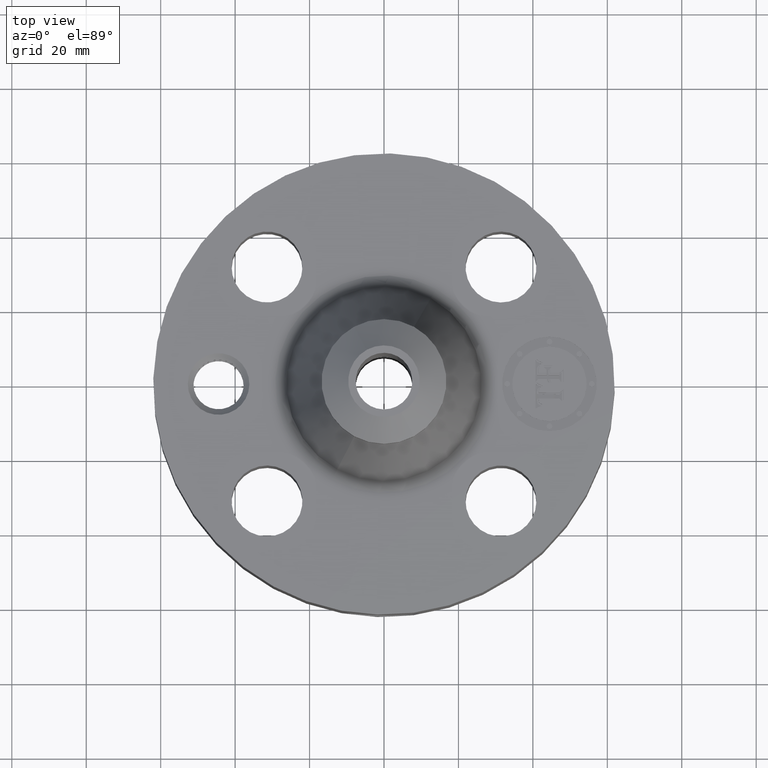
[diagram: clean part render]
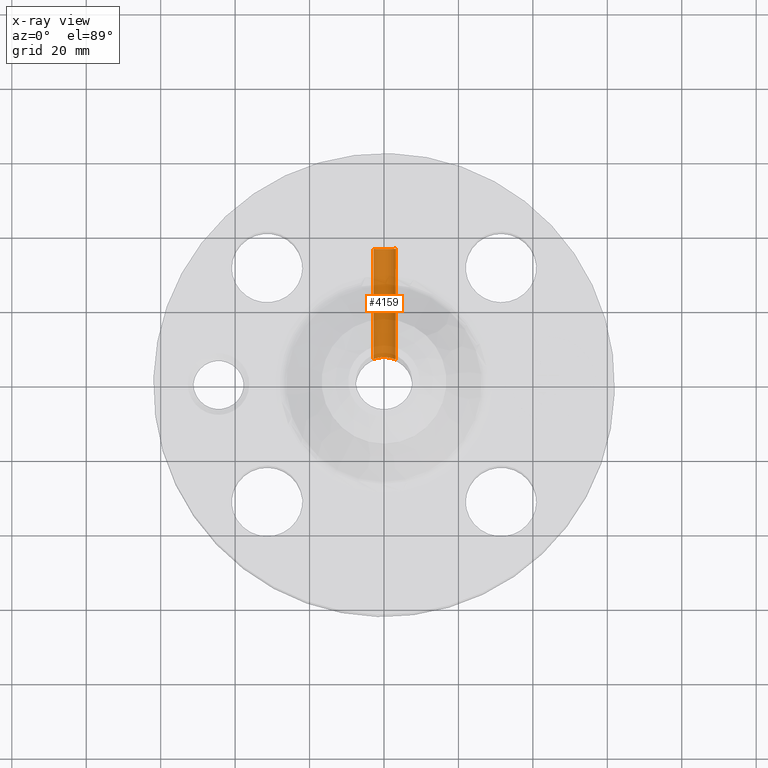
[diagram: x-ray — body ghosted, one internal face saturated and labeled with its STEP entity id]
A machine part, top view, then the same camera in x-ray: the body is ghosted and one INTERNAL B-rep face — a face not visible from any outside direction — is saturated and labeled: STEP entity #4159.
In plain terms, the highlighted cylindrical surface (edge-blend (fillet) strip) has radius 3.175 mm, axis along (-0, -1, 0).
Its self-contained STEP definition (entity closure, byte-faithful):
#4132=AXIS2_PLACEMENT_3D('Cylinder Axis2P3D',#4129,#4130,#4131) ;
#4143=AXIS2_PLACEMENT_3D('Circle Axis2P3D',#4141,#4142,$) ;
#2909=CARTESIAN_POINT('Vertex',(0.109697820237,0.27868734854,0.99992819233)) ;
#2911=CARTESIAN_POINT('Vertex',(-0.109697820237,0.27868734854,0.880071807678)) ;
#2915=CARTESIAN_POINT('Control Point',(0.109697820237,0.27868734854,0.99992819233)) ;
#2916=CARTESIAN_POINT('Control Point',(0.119052750986,0.275005030282,0.982804106456)) ;
#2917=CARTESIAN_POINT('Control Point',(0.125141565692,0.272154981826,0.963716813395)) ;
#2918=CARTESIAN_POINT('Control Point',(0.127379754462,0.271016749893,0.943311163089)) ;
#2919=CARTESIAN_POINT('Control Point',(0.123153811523,0.273231024964,0.899911363887)) ;
#2920=CARTESIAN_POINT('Control Point',(0.101926334167,0.282067269231,0.86244575694)) ;
#2921=CARTESIAN_POINT('Control Point',(0.086442629788,0.287673958915,0.845515600056)) ;
#2922=CARTESIAN_POINT('Control Point',(0.0507121314441,0.296909802022,0.820737390912)) ;
#2923=CARTESIAN_POINT('Control Point',(0.0073909888614,0.300500591955,0.812671894684)) ;
#2924=CARTESIAN_POINT('Control Point',(-0.0137403193224,0.300258568057,0.813211386212)) ;
#2925=CARTESIAN_POINT('Control Point',(-0.0500295250798,0.296471468883,0.821852028844)) ;
#2926=CARTESIAN_POINT('Control Point',(-0.0802938379462,0.289006584964,0.842189085439)) ;
#2927=CARTESIAN_POINT('Control Point',(-0.0921044062996,0.285305985178,0.853237240083)) ;
#2928=CARTESIAN_POINT('Control Point',(-0.102005316159,0.281715297006,0.865990773414)) ;
#2929=CARTESIAN_POINT('Control Point',(-0.109697820237,0.27868734854,0.880071807678)) ;
#4129=CARTESIAN_POINT('Axis2P3D Location',(2.65681851162E-015,2.43606299214,0.940000000004)) ;
#4134=CARTESIAN_POINT('Line Origine',(0.109697820237,0.857683921573,0.99992819233)) ;
#4138=CARTESIAN_POINT('Vertex',(0.109697820237,1.44321662097,0.99992819233)) ;
#4141=CARTESIAN_POINT('Axis2P3D Location',(2.47443559205E-015,1.44321662097,0.940000000004)) ;
#4145=CARTESIAN_POINT('Vertex',(-0.109697820237,1.44321662097,0.880071807678)) ;
#4148=CARTESIAN_POINT('Line Origine',(-0.109697820237,0.857683921573,0.880071807678)) ;
#4130=DIRECTION('Axis2P3D Direction',(-7.2321661367E-018,-0.0393700787402,0.)) ;
#4131=DIRECTION('Axis2P3D XDirection',(0.0345504945626,-6.34682288626E-018,0.0188750212049)) ;
#4135=DIRECTION('Vector Direction',(-7.64126024427E-018,-0.0393700787402,0.)) ;
#4142=DIRECTION('Axis2P3D Direction',(-7.2321661367E-018,-0.0393700787402,0.)) ;
#4149=DIRECTION('Vector Direction',(-7.64126024427E-018,-0.0393700787402,0.)) ;
#4136=VECTOR('Line Direction',#4135,0.0393700787402) ;
#4150=VECTOR('Line Direction',#4149,0.0393700787402) ;
#4154=ORIENTED_EDGE('',*,*,#2930,.F.) ;
#4155=ORIENTED_EDGE('',*,*,#4140,.T.) ;
#4156=ORIENTED_EDGE('',*,*,#4147,.F.) ;
#4157=ORIENTED_EDGE('',*,*,#4152,.F.) ;
#4159=ADVANCED_FACE('PartBody',(#4158),#4133,.F.) ;
#2914=B_SPLINE_CURVE_WITH_KNOTS('',5,(#2915,#2916,#2917,#2918,#2919,#2920,#2921,#2922,#2923,#2924,#2925,#2926,#2927,#2928,#2929),.UNSPECIFIED.,.F.,.U.,(6,3,3,3,6),(0.,3.5664553897,7.67660148295,11.3390046373,14.2716797544),.UNSPECIFIED.) ;
#4144=CIRCLE('generated circle',#4143,0.125000000001) ;
#4133=CYLINDRICAL_SURFACE('generated cylinder',#4132,0.125000000001) ;
#2930=EDGE_CURVE('',#2910,#2912,#2914,.T.) ;
#4140=EDGE_CURVE('',#2910,#4139,#4137,.F.) ;
#4147=EDGE_CURVE('',#4146,#4139,#4144,.T.) ;
#4152=EDGE_CURVE('',#2912,#4146,#4151,.F.) ;
#4153=EDGE_LOOP('',(#4154,#4155,#4156,#4157)) ;
#4158=FACE_OUTER_BOUND('',#4153,.T.) ;
#4137=LINE('Line',#4134,#4136) ;
#4151=LINE('Line',#4148,#4150) ;
#2910=VERTEX_POINT('',#2909) ;
#2912=VERTEX_POINT('',#2911) ;
#4139=VERTEX_POINT('',#4138) ;
#4146=VERTEX_POINT('',#4145) ;